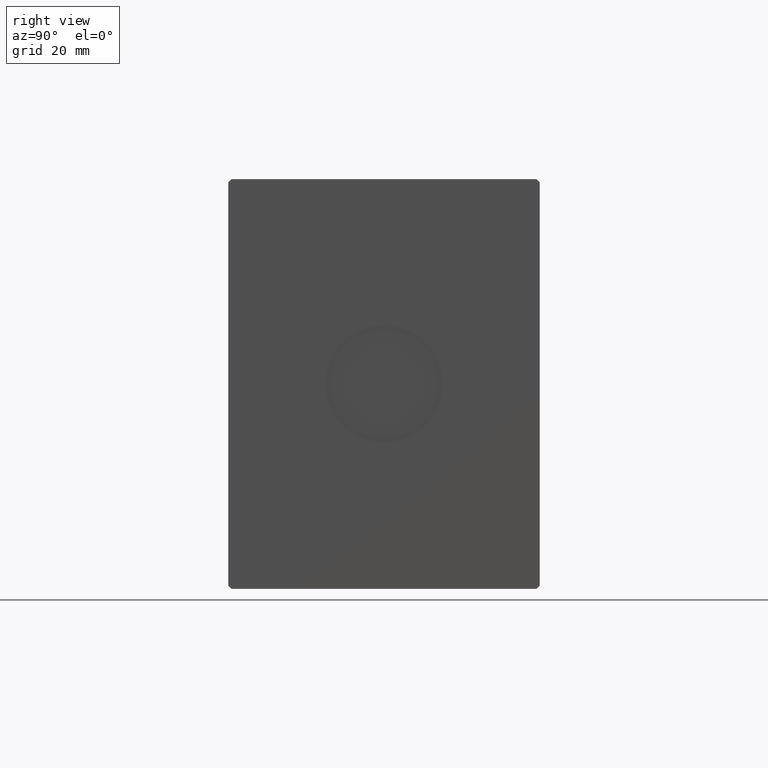
[diagram: clean part render]
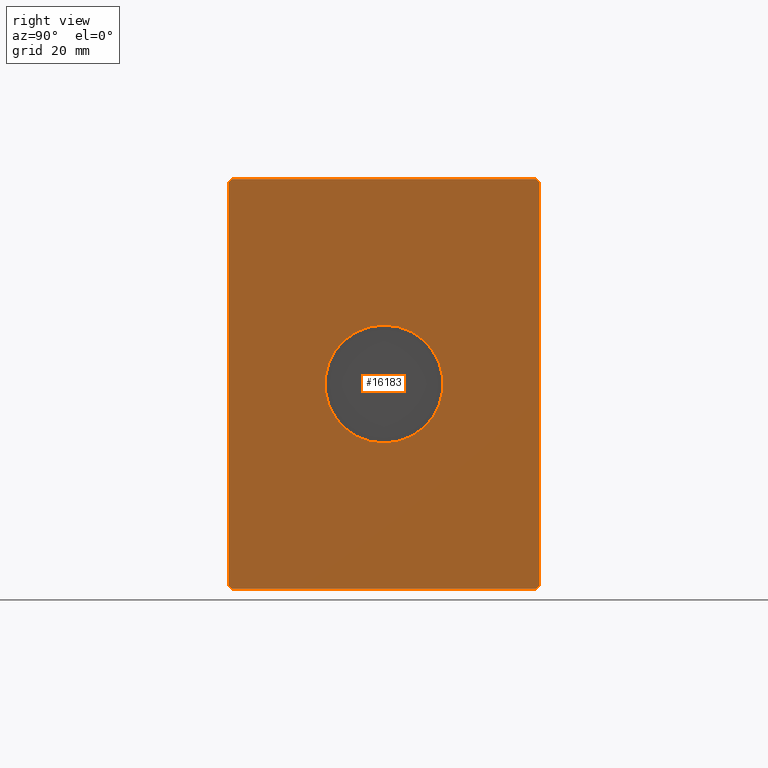
[diagram: same view with one face highlighted and labeled with its STEP entity id]
A machine part, right view. The second image highlights one B-rep face of the part: STEP entity #16183.
In plain terms, the highlighted planar face has unit normal (1, 0, 0).
Its self-contained STEP definition (entity closure, byte-faithful):
#2019 = LINE ( 'NONE', #5365, #10123 ) ;
#3009 = CIRCLE ( 'NONE', #9917, 18.00000000000000000 ) ;
#3020 = ORIENTED_EDGE ( 'NONE', *, *, #23905, .T. ) ;
#3054 = VECTOR ( 'NONE', #10378, 1000.000000000000114 ) ;
#3130 = CARTESIAN_POINT ( 'NONE',  ( 121.0000000000000000, -47.49999999999999289, -61.50000000000001421 ) ) ;
#3356 = EDGE_CURVE ( 'NONE', #21795, #25534, #24379, .T. ) ;
#3582 = CARTESIAN_POINT ( 'NONE',  ( 121.0000000000000000, -47.50000000000001421, 61.49999999999997868 ) ) ;
#3789 = VERTEX_POINT ( 'NONE', #29596 ) ;
#5284 = EDGE_LOOP ( 'NONE', ( #3020, #17057, #20891, #29103, #31270, #34910, #12849, #32704 ) ) ;
#5365 = CARTESIAN_POINT ( 'NONE',  ( 121.0000000000000000, 47.50000000000001421, -61.50000000000001421 ) ) ;
#6215 = DIRECTION ( 'NONE',  ( 0.000000000000000000, 1.000000000000000000, 1.492235248152092278E-16 ) ) ;
#6706 = DIRECTION ( 'NONE',  ( 0.000000000000000000, 1.692413147294445970E-16, -1.000000000000000000 ) ) ;
#9084 = EDGE_CURVE ( 'NONE', #28637, #24903, #2019, .T. ) ;
#9917 = AXIS2_PLACEMENT_3D ( 'NONE', #28485, #16301, #25922 ) ;
#10123 = VECTOR ( 'NONE', #28603, 1000.000000000000000 ) ;
#10378 = DIRECTION ( 'NONE',  ( 0.000000000000000000, -0.7071067811865474617, 0.7071067811865474617 ) ) ;
#10975 = EDGE_CURVE ( 'NONE', #29007, #21561, #18405, .T. ) ;
#11020 = DIRECTION ( 'NONE',  ( 1.000000000000000000, 0.000000000000000000, 0.000000000000000000 ) ) ;
#11245 = EDGE_CURVE ( 'NONE', #25577, #21795, #36027, .T. ) ;
#11496 = VERTEX_POINT ( 'NONE', #22836 ) ;
#11739 = CARTESIAN_POINT ( 'NONE',  ( 121.0000000000000000, 47.50000000000001421, -61.50000000000001421 ) ) ;
#11885 = CARTESIAN_POINT ( 'NONE',  ( 121.0000000000000000, 46.50000000000000000, 62.49999999999998579 ) ) ;
#12006 = FACE_BOUND ( 'NONE', #33437, .T. ) ;
#12376 = DIRECTION ( 'NONE',  ( 0.000000000000000000, 0.7071067811865451302, -0.7071067811865500152 ) ) ;
#12439 = EDGE_CURVE ( 'NONE', #36209, #3789, #36504, .T. ) ;
#12849 = ORIENTED_EDGE ( 'NONE', *, *, #38170, .T. ) ;
#12950 = CARTESIAN_POINT ( 'NONE',  ( 121.0000000000000000, 47.50000000000000000, 61.49999999999998579 ) ) ;
#13385 = EDGE_CURVE ( 'NONE', #21561, #25577, #27142, .T. ) ;
#13506 = VECTOR ( 'NONE', #6215, 1000.000000000000000 ) ;
#13691 = VECTOR ( 'NONE', #12376, 1000.000000000000114 ) ;
#13980 = CARTESIAN_POINT ( 'NONE',  ( 121.0000000000000000, 0.000000000000000000, 0.000000000000000000 ) ) ;
#14961 = CARTESIAN_POINT ( 'NONE',  ( 121.0000000000000000, 47.50000000000000000, 61.49999999999998579 ) ) ;
#15156 = PLANE ( 'NONE',  #33600 ) ;
#15203 = CARTESIAN_POINT ( 'NONE',  ( 121.0000000000000000, -46.50000000000000000, -62.50000000000001421 ) ) ;
#16183 = ADVANCED_FACE ( 'NONE', ( #12006, #18106 ), #15156, .T. ) ;
#16301 = DIRECTION ( 'NONE',  ( 1.000000000000000000, 0.000000000000000000, 0.000000000000000000 ) ) ;
#16980 = EDGE_CURVE ( 'NONE', #25534, #11496, #18026, .T. ) ;
#17057 = ORIENTED_EDGE ( 'NONE', *, *, #10975, .T. ) ;
#17506 = DIRECTION ( 'NONE',  ( 0.000000000000000000, 0.000000000000000000, -1.000000000000000000 ) ) ;
#17659 = AXIS2_PLACEMENT_3D ( 'NONE', #13980, #11020, #17506 ) ;
#18026 = LINE ( 'NONE', #30391, #13506 ) ;
#18106 = FACE_OUTER_BOUND ( 'NONE', #5284, .T. ) ;
#18405 = LINE ( 'NONE', #18602, #32200 ) ;
#18602 = CARTESIAN_POINT ( 'NONE',  ( 121.0000000000000000, 46.50000000000000000, 62.49999999999998579 ) ) ;
#18813 = CARTESIAN_POINT ( 'NONE',  ( 121.0000000000000000, -47.49999999999999289, -61.50000000000001421 ) ) ;
#20194 = VECTOR ( 'NONE', #34009, 1000.000000000000114 ) ;
#20891 = ORIENTED_EDGE ( 'NONE', *, *, #13385, .T. ) ;
#21025 = ORIENTED_EDGE ( 'NONE', *, *, #12439, .F. ) ;
#21171 = DIRECTION ( 'NONE',  ( 0.000000000000000000, -1.000000000000000000, -7.461176240760460157E-17 ) ) ;
#21380 = DIRECTION ( 'NONE',  ( 0.000000000000000000, 0.7071067811865574537, 0.7071067811865376918 ) ) ;
#21561 = VERTEX_POINT ( 'NONE', #37195 ) ;
#21795 = VERTEX_POINT ( 'NONE', #18813 ) ;
#22600 = CARTESIAN_POINT ( 'NONE',  ( 121.0000000000000000, 0.000000000000000000, -18.00000000000000000 ) ) ;
#22836 = CARTESIAN_POINT ( 'NONE',  ( 121.0000000000000000, 46.50000000000000000, -62.50000000000000000 ) ) ;
#23905 = EDGE_CURVE ( 'NONE', #24903, #29007, #27899, .T. ) ;
#24379 = LINE ( 'NONE', #3130, #13691 ) ;
#24903 = VERTEX_POINT ( 'NONE', #14961 ) ;
#25534 = VERTEX_POINT ( 'NONE', #15203 ) ;
#25577 = VERTEX_POINT ( 'NONE', #3582 ) ;
#25922 = DIRECTION ( 'NONE',  ( 0.000000000000000000, 0.000000000000000000, -1.000000000000000000 ) ) ;
#27142 = LINE ( 'NONE', #27922, #20194 ) ;
#27151 = CARTESIAN_POINT ( 'NONE',  ( 121.0000000000000000, 0.000000000000000000, 0.000000000000000000 ) ) ;
#27899 = LINE ( 'NONE', #12950, #3054 ) ;
#27922 = CARTESIAN_POINT ( 'NONE',  ( 121.0000000000000000, -46.50000000000001421, 62.49999999999997868 ) ) ;
#28481 = EDGE_CURVE ( 'NONE', #3789, #36209, #3009, .T. ) ;
#28485 = CARTESIAN_POINT ( 'NONE',  ( 121.0000000000000000, 0.000000000000000000, 0.000000000000000000 ) ) ;
#28603 = DIRECTION ( 'NONE',  ( 0.000000000000000000, -1.128275431529630729E-16, 1.000000000000000000 ) ) ;
#28637 = VERTEX_POINT ( 'NONE', #11739 ) ;
#29007 = VERTEX_POINT ( 'NONE', #11885 ) ;
#29103 = ORIENTED_EDGE ( 'NONE', *, *, #11245, .T. ) ;
#29596 = CARTESIAN_POINT ( 'NONE',  ( 121.0000000000000000, 2.204364238465235428E-15, 18.00000000000000000 ) ) ;
#29702 = DIRECTION ( 'NONE',  ( 1.000000000000000000, 0.000000000000000000, 0.000000000000000000 ) ) ;
#29892 = VECTOR ( 'NONE', #21380, 999.9999999999998863 ) ;
#30391 = CARTESIAN_POINT ( 'NONE',  ( 121.0000000000000000, -46.50000000000000000, -62.50000000000001421 ) ) ;
#31270 = ORIENTED_EDGE ( 'NONE', *, *, #3356, .T. ) ;
#32200 = VECTOR ( 'NONE', #21171, 1000.000000000000000 ) ;
#32704 = ORIENTED_EDGE ( 'NONE', *, *, #9084, .T. ) ;
#32877 = CARTESIAN_POINT ( 'NONE',  ( 121.0000000000000000, -47.50000000000001421, 61.49999999999997868 ) ) ;
#33437 = EDGE_LOOP ( 'NONE', ( #21025, #36808 ) ) ;
#33600 = AXIS2_PLACEMENT_3D ( 'NONE', #27151, #29702, #38763 ) ;
#34009 = DIRECTION ( 'NONE',  ( 0.000000000000000000, -0.7071067811865474617, -0.7071067811865474617 ) ) ;
#34910 = ORIENTED_EDGE ( 'NONE', *, *, #16980, .T. ) ;
#36027 = LINE ( 'NONE', #32877, #37889 ) ;
#36209 = VERTEX_POINT ( 'NONE', #22600 ) ;
#36504 = CIRCLE ( 'NONE', #17659, 18.00000000000000000 ) ;
#36512 = LINE ( 'NONE', #36710, #29892 ) ;
#36710 = CARTESIAN_POINT ( 'NONE',  ( 121.0000000000000000, 46.50000000000000000, -62.50000000000000000 ) ) ;
#36808 = ORIENTED_EDGE ( 'NONE', *, *, #28481, .F. ) ;
#37195 = CARTESIAN_POINT ( 'NONE',  ( 121.0000000000000000, -46.50000000000001421, 62.49999999999997868 ) ) ;
#37889 = VECTOR ( 'NONE', #6706, 1000.000000000000000 ) ;
#38170 = EDGE_CURVE ( 'NONE', #11496, #28637, #36512, .T. ) ;
#38763 = DIRECTION ( 'NONE',  ( 0.000000000000000000, 0.000000000000000000, -1.000000000000000000 ) ) ;